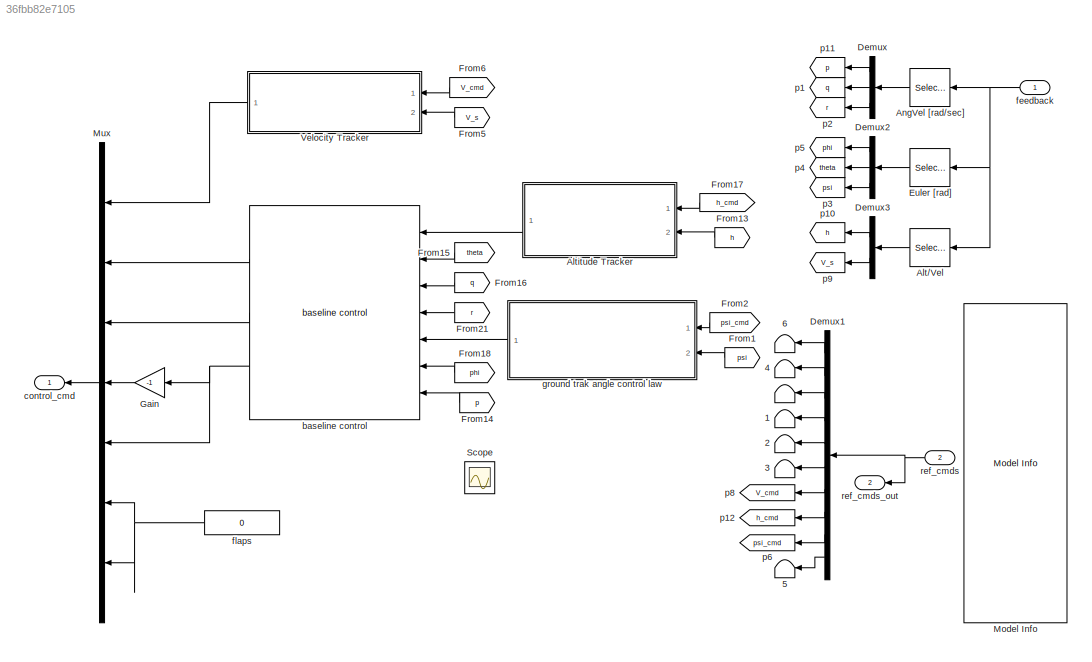
MODEL slx_36fbb82e7105
KIND model
BLOCK [Terminator]  
BLOCK [Terminator]  1
BLOCK [Terminator]  2
BLOCK [Terminator]  3
BLOCK [Terminator]  4
BLOCK [Terminator]  5
BLOCK [Terminator]  6
BLOCK [Selector] Alt//Vel
  IndexOptions = Index vector (dialog)
  Indices = [10:11]
  InputPortWidth = 19
  OutputSizes = 1
  Ports = [1, 1]
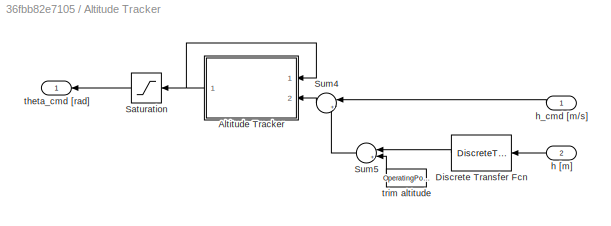
BLOCK [SubSystem] Altitude Tracker
  FunctionWithSeparateData = off
  MaskHideContents = off
  MinAlgLoopOccurrences = off
  Opaque = off
  Ports = [2, 1]
  PropExecContextOutsideSubsystem = off
  RTWSystemCode = Auto
  RequestExecContextInheritance = off
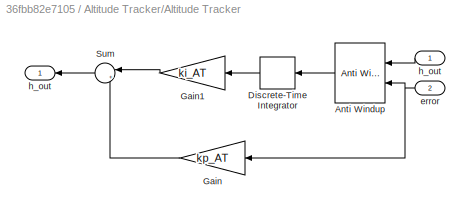
BLOCK [SubSystem] Altitude Tracker/Altitude Tracker
  FunctionWithSeparateData = off
  MaskHideContents = off
  MinAlgLoopOccurrences = off
  Opaque = off
  Ports = [2, 1]
  PropExecContextOutsideSubsystem = off
  RTWSystemCode = Auto
  RequestExecContextInheritance = off
BLOCK [Inport] Altitude Tracker/Altitude Tracker/ h_out
  IconDisplay = Port number
BLOCK [Reference] Altitude Tracker/Altitude Tracker/Anti Windup  REF=Actuator_Lib/Anti Windup
  MAX_DEF = AC.Actuator.elevator.PosLim-TrimCondition.Inputs.elevator
  MIN_DEF = AC.Actuator.elevator.NegLim-TrimCondition.Inputs.elevator
  Ports = [2, 1]
  SourceBlock = Actuator_Lib/Anti Windup
  SourceType = Integrator Anti-Windup
  gain_sign = on
BLOCK [DiscreteIntegrator] Altitude Tracker/Altitude Tracker/Discrete-Time Integrator
  ICPrevOutput = DiscIntNeverNeededParam
  ICPrevScaledInput = DiscIntNeverNeededParam
  Ports = [1, 1]
  SampleTime = .02
BLOCK [Gain] Altitude Tracker/Altitude Tracker/Gain
  Gain = kp_AT
  OutDataTypeStr = Inherit: Inherit via internal rule
  ParamDataTypeStr = Inherit: Inherit via internal rule
  SaturateOnIntegerOverflow = off
BLOCK [Gain] Altitude Tracker/Altitude Tracker/Gain1
  Gain = ki_AT
  OutDataTypeStr = Inherit: Inherit via internal rule
  ParamDataTypeStr = Inherit: Inherit via internal rule
  SaturateOnIntegerOverflow = off
BLOCK [Sum] Altitude Tracker/Altitude Tracker/Sum
  IconShape = round
  InputSameDT = off
  Inputs = |++
  OutDataTypeStr = Inherit: Inherit via internal rule
  Ports = [2, 1]
  SaturateOnIntegerOverflow = off
BLOCK [Inport] Altitude Tracker/Altitude Tracker/error
  IconDisplay = Port number
  Port = 2
BLOCK [Outport] Altitude Tracker/Altitude Tracker/h_out
  IconDisplay = Port number
BLOCK [DiscreteTransferFcn] Altitude Tracker/Discrete Transfer Fcn
  Denominator = [1 LP_filter(2,2)]
  InitialStates = OperatingPoint.op_report.Outputs(4).y/LP_filter(1,2)
  InputPortMap = u0
  Numerator = [LP_filter(1,2)]
  Ports = [1, 1]
  SampleTime = SampleTime
BLOCK [Saturate] Altitude Tracker/Saturation
  InputPortMap = u0
  LowerLimit = -theta_sat*pi/180
  Ports = [1, 1]
  SampleTime = SampleTime
  UpperLimit = theta_sat*pi/180
BLOCK [Sum] Altitude Tracker/Sum4
  IconShape = round
  InputSameDT = off
  Inputs = |+-
  OutDataTypeStr = Inherit: Inherit via internal rule
  Ports = [2, 1]
  SampleTime = SampleTime
  SaturateOnIntegerOverflow = off
BLOCK [Sum] Altitude Tracker/Sum5
  IconShape = round
  InputSameDT = off
  Inputs = |+-
  OutDataTypeStr = Inherit: Inherit via internal rule
  Ports = [2, 1]
  SampleTime = SampleTime
  SaturateOnIntegerOverflow = off
BLOCK [Inport] Altitude Tracker/h [m]
  IconDisplay = Port number
  Port = 2
BLOCK [Inport] Altitude Tracker/h_cmd [m//s]
  IconDisplay = Port number
BLOCK [Outport] Altitude Tracker/theta_cmd [rad]
  IconDisplay = Port number
BLOCK [Constant] Altitude Tracker/trim altitude
  Value = OperatingPoint.op_report.Outputs(4).y
BLOCK [Selector] AngVel [rad//sec]
  IndexOptions = Index vector (dialog)
  Indices = [4:6]
  InputPortWidth = 19
  OutputSizes = 1
  Ports = [1, 1]
BLOCK [Demux] Demux
  DisplayOption = bar
  Outputs = 3
  Ports = [1, 3]
BLOCK [Demux] Demux1
  DisplayOption = bar
  Outputs = [1 1 1 1 1 1 1 1 1 3]
  Ports = [1, 10]
BLOCK [Demux] Demux2
  DisplayOption = bar
  Outputs = 3
  Ports = [1, 3]
BLOCK [Demux] Demux3
  DisplayOption = bar
  Outputs = 2
  Ports = [1, 2]
BLOCK [Selector] Euler [rad]
  IndexOptions = Index vector (dialog)
  Indices = [1:3]
  InputPortWidth = 19
  OutputSizes = 1
  Ports = [1, 1]
BLOCK [From] From1
  GotoTag = psi
BLOCK [From] From13
  GotoTag = h
BLOCK [From] From14
  GotoTag = p
BLOCK [From] From15
  GotoTag = theta
BLOCK [From] From16
  GotoTag = q
BLOCK [From] From17
  GotoTag = h_cmd
BLOCK [From] From18
  GotoTag = phi
BLOCK [From] From2
  GotoTag = psi_cmd
BLOCK [From] From21
  GotoTag = r
BLOCK [From] From5
  GotoTag = V_s
BLOCK [From] From6
  GotoTag = V_cmd
BLOCK [Gain] Gain
  Gain = -1
  OutDataTypeStr = Inherit: Inherit via internal rule
  ParamDataTypeStr = Inherit: Inherit via internal rule
  SaturateOnIntegerOverflow = off
BLOCK [Reference] Model Info  REF=simulink/Model-Wide
Utilities/Model Info
  BlockCM = None
  DisplayStringWithTags = Ref Cmd Port Info\n\n1. phi_cmd\n2. theta_cmd\n3. psi_cmd\n4. p_cmd\n5. q_cmd\n6. r_cmd\n7. V_s_cmd\n8. h_cmd\n9. gndtrk_cmd\n10. aoa_cmd\n11. aos_cmd\n12. gamma_cmd\n13. signal_0\n14. signal_1\n15. signal_2\n16. signal_3\n17. signal_4\n18. signal_5\n19. signal_6\n20. signal_7\n21. signal_8\n22. signal_9
  Frame = on
  HorizontalTextAlignment = Center
  InitialBlockCM = None
  LeftAlignmentValue = 0.5
  MaskDisplayString = Ref Cmd Port Info\n\n1. phi_cmd\n2. theta_cmd\n3. psi_cmd\n4. p_cmd\n5. q_cmd\n6. r_cmd\n7. V_s_cmd\n8. h_cmd\n9. gndtrk_cmd\n10. aoa_cmd\n11. aos_cmd\n12. gamma_cmd\n13. signal_0\n14. signal_1\n15. signal_2\n16. signal_3\n17. signal_4\n18. signal_5\n19. signal_6\n20. signal_7\n21. signal_8\n22. signal_9
  Ports = []
  SourceBlock = simulink/Model-Wide\nUtilities/Model Info
  SourceBlockDiagram = baseline_alt_vel_control
  SourceType = CMBlock
  TagMaxNumber = 20
BLOCK [Mux] Mux
  DisplayOption = bar
  Inputs = 7
  Ports = [7, 1]
BLOCK [Scope] Scope
  DataFormat = StructureWithTime
  Floating = off
  NumInputPorts = 1
  Ports = [1]
  SampleTime = 0
  ShowLegends = off
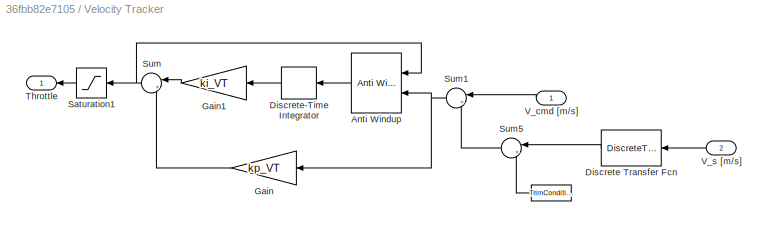
BLOCK [SubSystem] Velocity Tracker
  FunctionWithSeparateData = off
  MaskHideContents = off
  MinAlgLoopOccurrences = off
  Opaque = off
  Ports = [2, 1]
  PropExecContextOutsideSubsystem = off
  RTWSystemCode = Auto
  RequestExecContextInheritance = off
BLOCK [Constant] Velocity Tracker/    
  Value = TrimCondition.WindAxesIni(1)
BLOCK [Reference] Velocity Tracker/Anti Windup  REF=Actuator_Lib/Anti Windup
  MAX_DEF = AC.Actuator.throttle.PosLim-TrimCondition.Inputs.throttle
  MIN_DEF = AC.Actuator.throttle.NegLim-TrimCondition.Inputs.throttle
  Ports = [2, 1]
  SourceBlock = Actuator_Lib/Anti Windup
  SourceType = Integrator Anti-Windup
  gain_sign = on
BLOCK [DiscreteTransferFcn] Velocity Tracker/Discrete Transfer Fcn
  Denominator = [1 LP_filter(2,2)]
  InitialStates = TrimCondition.target.V_s/LP_filter(1,2)
  InputPortMap = u0
  Numerator = [LP_filter(1,2)]
  Ports = [1, 1]
  SampleTime = SampleTime
BLOCK [DiscreteIntegrator] Velocity Tracker/Discrete-Time Integrator
  ICPrevOutput = DiscIntNeverNeededParam
  ICPrevScaledInput = DiscIntNeverNeededParam
  Ports = [1, 1]
  SampleTime = .02
BLOCK [Gain] Velocity Tracker/Gain
  Gain = kp_VT
  OutDataTypeStr = Inherit: Inherit via internal rule
  ParamDataTypeStr = Inherit: Inherit via internal rule
  SaturateOnIntegerOverflow = off
BLOCK [Gain] Velocity Tracker/Gain1
  Gain = ki_VT
  OutDataTypeStr = Inherit: Inherit via internal rule
  ParamDataTypeStr = Inherit: Inherit via internal rule
  SaturateOnIntegerOverflow = off
BLOCK [Saturate] Velocity Tracker/Saturation1
  InputPortMap = u0
  LowerLimit = AC.Actuator.throttle.NegLim-TrimCondition.Inputs.throttle
  Ports = [1, 1]
  SampleTime = SampleTime
  UpperLimit = AC.Actuator.throttle.PosLim-TrimCondition.Inputs.throttle
BLOCK [Sum] Velocity Tracker/Sum
  IconShape = round
  InputSameDT = off
  Inputs = |++
  OutDataTypeStr = Inherit: Inherit via internal rule
  Ports = [2, 1]
  SaturateOnIntegerOverflow = off
BLOCK [Sum] Velocity Tracker/Sum1
  IconShape = round
  InputSameDT = off
  Inputs = |+-
  OutDataTypeStr = Inherit: Inherit via internal rule
  Ports = [2, 1]
  SaturateOnIntegerOverflow = off
BLOCK [Sum] Velocity Tracker/Sum5
  IconShape = round
  InputSameDT = off
  Inputs = |+-
  OutDataTypeStr = Inherit: Inherit via internal rule
  Ports = [2, 1]
  SampleTime = SampleTime
  SaturateOnIntegerOverflow = off
BLOCK [Outport] Velocity Tracker/Throttle 
  IconDisplay = Port number
BLOCK [Inport] Velocity Tracker/V_cmd [m//s]
  IconDisplay = Port number
BLOCK [Inport] Velocity Tracker/V_s [m//s]
  IconDisplay = Port number
  Port = 2
BLOCK [Reference] baseline control  REF=Controller_Lib/baseline control
  Ports = [7, 3]
  SourceBlock = Controller_Lib/baseline control
  SourceType = Baseline Controller
  pitch = pitch_gains
  roll = roll_gains
  yaw_den = yaw_damper_den
  yaw_num = yaw_damper_num
BLOCK [Outport] control_cmd
  IconDisplay = Port number
BLOCK [Inport] feedback
  IconDisplay = Port number
BLOCK [Constant] flaps
  Value = 0
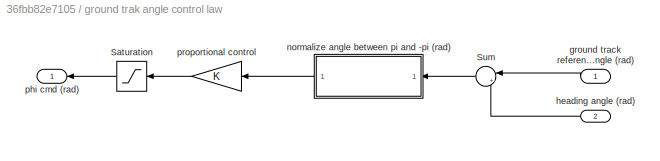
BLOCK [SubSystem] ground trak angle control law
  FunctionWithSeparateData = off
  MaskHideContents = off
  MinAlgLoopOccurrences = off
  Opaque = off
  Ports = [2, 1]
  PropExecContextOutsideSubsystem = off
  RTWSystemCode = Auto
  RequestExecContextInheritance = off
BLOCK [Saturate] ground trak angle control law/Saturation
  InputPortMap = u0
  LowerLimit = -40*pi/180
  Ports = [1, 1]
  UpperLimit = 40*pi/180
BLOCK [Sum] ground trak angle control law/Sum
  IconShape = round
  InputSameDT = off
  Inputs = |+-
  OutDataTypeStr = Inherit: Inherit via internal rule
  Ports = [2, 1]
  SaturateOnIntegerOverflow = off
BLOCK [Inport] ground trak angle control law/ground track reference angle (rad)
  IconDisplay = Port number
BLOCK [Inport] ground trak angle control law/heading angle (rad)
  IconDisplay = Port number
  Port = 2
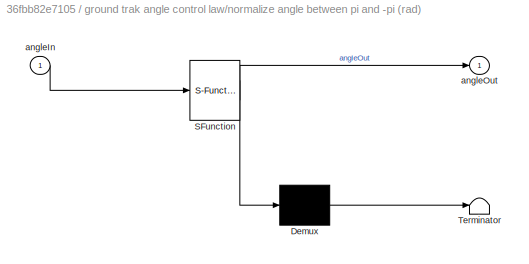
BLOCK [SubSystem] ground trak angle control law/normalize angle between pi and -pi (rad)
  ErrorFcn = Stateflow.Translate.translate
  FunctionWithSeparateData = off
  MaskHideContents = off
  MinAlgLoopOccurrences = off
  Opaque = off
  PermitHierarchicalResolution = ExplicitOnly
  Ports = [1, 1]
  PropExecContextOutsideSubsystem = off
  RTWSystemCode = Auto
  RequestExecContextInheritance = off
  SFBlockType = MATLAB Function
  TreatAsAtomicUnit = on
BLOCK [Demux] ground trak angle control law/normalize angle between pi and -pi (rad)/ Demux 
  Outputs = 1
  Ports = [1, 1]
BLOCK [S-Function] ground trak angle control law/normalize angle between pi and -pi (rad)/ SFunction 
  EnableBusSupport = on
  FunctionName = sf_sfun
  PortCounts = [1 2]
  Ports = [1, 2]
  Tag = Stateflow S-Function baseline_alt_vel_control 3
BLOCK [Terminator] ground trak angle control law/normalize angle between pi and -pi (rad)/ Terminator 
BLOCK [Inport] ground trak angle control law/normalize angle between pi and -pi (rad)/angleIn
  IconDisplay = Port number
BLOCK [Outport] ground trak angle control law/normalize angle between pi and -pi (rad)/angleOut
  IconDisplay = Port number
BLOCK [Outport] ground trak angle control law/phi cmd (rad)
  IconDisplay = Port number
BLOCK [Gain] ground trak angle control law/proportional control
  OutDataTypeStr = Inherit: Inherit via internal rule
  ParamDataTypeStr = Inherit: Inherit via internal rule
  SaturateOnIntegerOverflow = off
BLOCK [Goto] p1
  GotoTag = q
BLOCK [Goto] p10
  GotoTag = h
BLOCK [Goto] p11
  GotoTag = p
BLOCK [Goto] p12
  GotoTag = h_cmd
BLOCK [Goto] p2
  GotoTag = r
BLOCK [Goto] p3
  GotoTag = psi
BLOCK [Goto] p4
  GotoTag = theta
BLOCK [Goto] p5
  GotoTag = phi
BLOCK [Goto] p6
  GotoTag = psi_cmd
BLOCK [Goto] p8
  GotoTag = V_cmd
BLOCK [Goto] p9
  GotoTag = V_s
BLOCK [Inport] ref_cmds
  IconDisplay = Port number
  Port = 2
BLOCK [Outport] ref_cmds_out
  IconDisplay = Port number
  Port = 2
LINE Alt//Vel:1 -> Demux3:1
LINE Altitude Tracker/Altitude Tracker/ h_out:1 -> Altitude Tracker/Altitude Tracker/Anti Windup:1
LINE Altitude Tracker/Altitude Tracker/Anti Windup:1 -> Altitude Tracker/Altitude Tracker/Discrete-Time Integrator:1
LINE Altitude Tracker/Altitude Tracker/Discrete-Time Integrator:1 -> Altitude Tracker/Altitude Tracker/Gain1:1
LINE Altitude Tracker/Altitude Tracker/Gain1:1 -> Altitude Tracker/Altitude Tracker/Sum:1
LINE Altitude Tracker/Altitude Tracker/Gain:1 -> Altitude Tracker/Altitude Tracker/Sum:2
LINE Altitude Tracker/Altitude Tracker/Sum:1 -> Altitude Tracker/Altitude Tracker/h_out:1
NET Altitude Tracker/Altitude Tracker/error:1 -> Altitude Tracker/Altitude Tracker/Anti Windup:2, Altitude Tracker/Altitude Tracker/Gain:1
NET Altitude Tracker/Altitude Tracker:1 -> Altitude Tracker/Altitude Tracker:1, Altitude Tracker/Saturation:1
LINE Altitude Tracker/Discrete Transfer Fcn:1 -> Altitude Tracker/Sum5:1
LINE Altitude Tracker/Saturation:1 -> Altitude Tracker/theta_cmd [rad]:1
LINE Altitude Tracker/Sum4:1 -> Altitude Tracker/Altitude Tracker:2
LINE Altitude Tracker/Sum5:1 -> Altitude Tracker/Sum4:2
LINE Altitude Tracker/h [m]:1 -> Altitude Tracker/Discrete Transfer Fcn:1
LINE Altitude Tracker/h_cmd [m//s]:1 -> Altitude Tracker/Sum4:1
LINE Altitude Tracker/trim altitude:1 -> Altitude Tracker/Sum5:2
LINE Altitude Tracker:1 -> baseline control:1
LINE AngVel [rad//sec]:1 -> Demux:1
LINE Demux1:1 ->  6:1
LINE Demux1:10 ->  5:1
LINE Demux1:2 ->  4:1
LINE Demux1:3 ->  :1
LINE Demux1:4 ->  1:1
LINE Demux1:5 ->  2:1
LINE Demux1:6 ->  3:1
LINE Demux1:7 -> p8:1
LINE Demux1:8 -> p12:1
LINE Demux1:9 -> p6:1
LINE Demux2:1 -> p5:1
LINE Demux2:2 -> p4:1
LINE Demux2:3 -> p3:1
LINE Demux3:1 -> p10:1
LINE Demux3:2 -> p9:1
LINE Demux:1 -> p11:1
LINE Demux:2 -> p1:1
LINE Demux:3 -> p2:1
LINE Euler [rad]:1 -> Demux2:1
LINE From13:1 -> Altitude Tracker:2
LINE From14:1 -> baseline control:7
LINE From15:1 -> baseline control:2
LINE From16:1 -> baseline control:3
LINE From17:1 -> Altitude Tracker:1
LINE From18:1 -> baseline control:6
LINE From1:1 -> ground trak angle control law:2
LINE From21:1 -> baseline control:4
LINE From2:1 -> ground trak angle control law:1
LINE From5:1 -> Velocity Tracker:2
LINE From6:1 -> Velocity Tracker:1
LINE Gain:1 -> Mux:4
LINE Mux:1 -> control_cmd:1
LINE Velocity Tracker/    :1 -> Velocity Tracker/Sum5:2
LINE Velocity Tracker/Anti Windup:1 -> Velocity Tracker/Discrete-Time Integrator:1
LINE Velocity Tracker/Discrete Transfer Fcn:1 -> Velocity Tracker/Sum5:1
LINE Velocity Tracker/Discrete-Time Integrator:1 -> Velocity Tracker/Gain1:1
LINE Velocity Tracker/Gain1:1 -> Velocity Tracker/Sum:1
LINE Velocity Tracker/Gain:1 -> Velocity Tracker/Sum:2
LINE Velocity Tracker/Saturation1:1 -> Velocity Tracker/Throttle :1
NET Velocity Tracker/Sum1:1 -> Velocity Tracker/Anti Windup:2, Velocity Tracker/Gain:1
LINE Velocity Tracker/Sum5:1 -> Velocity Tracker/Sum1:2
NET Velocity Tracker/Sum:1 -> Velocity Tracker/Anti Windup:1, Velocity Tracker/Saturation1:1
LINE Velocity Tracker/V_cmd [m//s]:1 -> Velocity Tracker/Sum1:1
LINE Velocity Tracker/V_s [m//s]:1 -> Velocity Tracker/Discrete Transfer Fcn:1
LINE Velocity Tracker:1 -> Mux:1
LINE baseline control:1 -> Mux:2
LINE baseline control:2 -> Mux:3
NET baseline control:3 -> Gain:1, Mux:5
NET feedback:1 -> Alt//Vel:1, AngVel [rad//sec]:1, Euler [rad]:1
NET flaps:1 -> Mux:6, Mux:7
LINE ground trak angle control law/Saturation:1 -> ground trak angle control law/phi cmd (rad):1
LINE ground trak angle control law/Sum:1 -> ground trak angle control law/normalize angle between pi and -pi (rad):1
LINE ground trak angle control law/ground track reference angle (rad):1 -> ground trak angle control law/Sum:1
LINE ground trak angle control law/heading angle (rad):1 -> ground trak angle control law/Sum:2
LINE ground trak angle control law/normalize angle between pi and -pi (rad):1 -> ground trak angle control law/proportional control:1
LINE ground trak angle control law/proportional control:1 -> ground trak angle control law/Saturation:1
LINE ground trak angle control law:1 -> baseline control:5
NET ref_cmds:1 -> Demux1:1, ref_cmds_out:1
note: NET lines group one-source signal fan-out (src -> all destinations, sorted); 1:1 wires keep LINE
